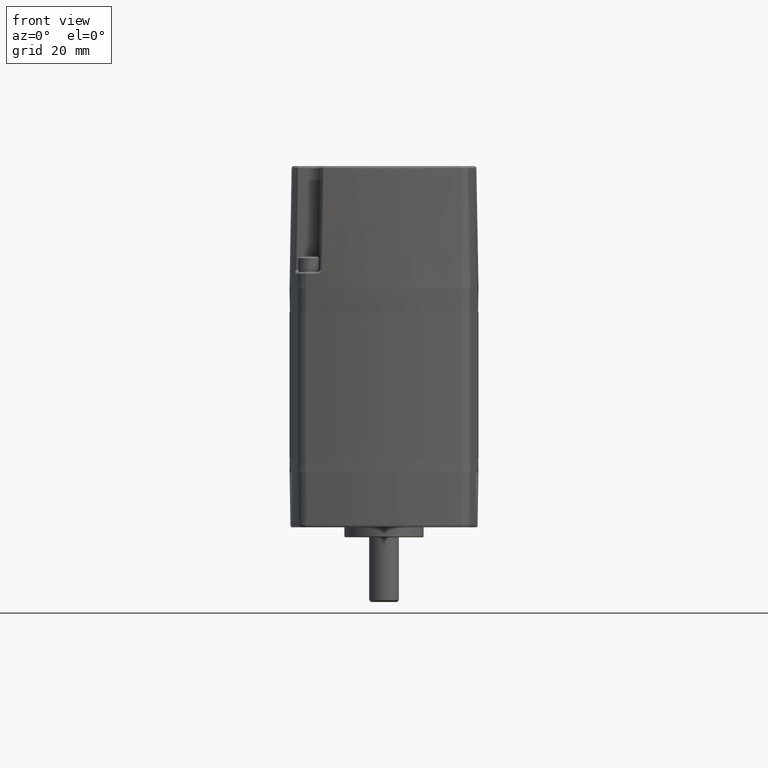
[diagram: clean part render]
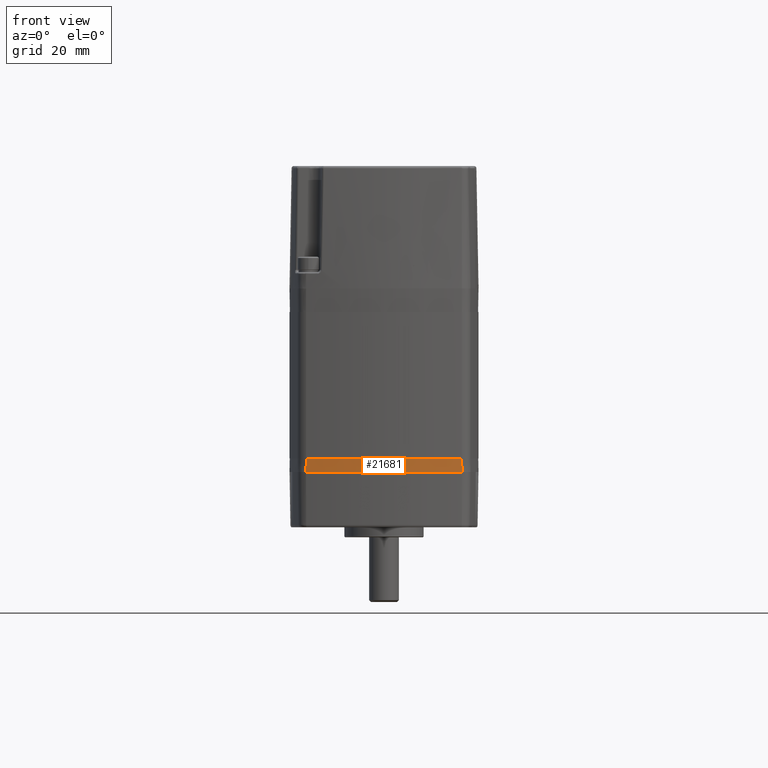
[diagram: same view with one face highlighted and labeled with its STEP entity id]
A machine part, front view. The second image highlights one B-rep face of the part: STEP entity #21681.
In plain terms, the highlighted conical surface has half-angle 1 deg.
Its self-contained STEP definition (entity closure, byte-faithful):
#385 = VERTEX_POINT ( 'NONE', #9582 ) ;
#735 = VERTEX_POINT ( 'NONE', #13779 ) ;
#1438 = CARTESIAN_POINT ( 'NONE',  ( -0.9787959327096633600, -1.087638883334293100, -0.1700000000000001000 ) ) ;
#2905 = DIRECTION ( 'NONE',  ( 1.000000000000000000, 0.0000000000000000000, 0.0000000000000000000 ) ) ;
#5779 = CIRCLE ( 'NONE', #6645, 4.846800000000000000 ) ;
#6547 = CARTESIAN_POINT ( 'NONE',  ( -1.497918734331767700E-016, 3.659299999999999600, -0.1700000000000001000 ) ) ;
#6549 = ORIENTED_EDGE ( 'NONE', *, *, #6678, .T. ) ;
#6645 = AXIS2_PLACEMENT_3D ( 'NONE', #12349, #33670, #15427 ) ;
#6678 = EDGE_CURVE ( 'NONE', #8315, #38070, #17482, .T. ) ;
#6805 = EDGE_CURVE ( 'NONE', #38070, #385, #36047, .T. ) ;
#8315 = VERTEX_POINT ( 'NONE', #31629 ) ;
#8420 = DIRECTION ( 'NONE',  ( -0.003524458289347420400, 0.01709282551887740500, 0.9998476951563912700 ) ) ;
#9582 = CARTESIAN_POINT ( 'NONE',  ( -0.9781966835319221300, -1.084732660364249100, 0.0000000000000000000 ) ) ;
#10365 = ORIENTED_EDGE ( 'NONE', *, *, #27300, .T. ) ;
#11411 = ORIENTED_EDGE ( 'NONE', *, *, #19854, .T. ) ;
#12349 = CARTESIAN_POINT ( 'NONE',  ( -1.497918734331767700E-016, 3.659299999999999600, -0.1699999999999995400 ) ) ;
#13779 = CARTESIAN_POINT ( 'NONE',  ( -0.9787959327096637000, -1.087638883334294300, -0.1700000000000001000 ) ) ;
#14621 = VECTOR ( 'NONE', #8420, 39.37007874015748100 ) ;
#15427 = DIRECTION ( 'NONE',  ( 3.552713678800500900E-015, 1.000000000000000000, 1.268188905204380700E-016 ) ) ;
#17482 = LINE ( 'NONE', #29816, #14621 ) ;
#19786 = DIRECTION ( 'NONE',  ( -0.003524458289347423000, -0.01709282551887740900, -0.9998476951563912700 ) ) ;
#19854 = EDGE_CURVE ( 'NONE', #735, #8315, #5779, .T. ) ;
#20189 = LINE ( 'NONE', #1438, #29265 ) ;
#21245 = DIRECTION ( 'NONE',  ( 0.0000000000000000000, 0.0000000000000000000, -1.000000000000000000 ) ) ;
#21681 = ADVANCED_FACE ( 'NONE', ( #31045 ), #38211, .T. ) ;
#21798 = DIRECTION ( 'NONE',  ( -0.0000000000000000000, -0.0000000000000000000, -1.000000000000000000 ) ) ;
#27300 = EDGE_CURVE ( 'NONE', #385, #735, #20189, .T. ) ;
#27366 = AXIS2_PLACEMENT_3D ( 'NONE', #39523, #21245, #2905 ) ;
#27943 = DIRECTION ( 'NONE',  ( 1.000000000000000000, 0.0000000000000000000, 0.0000000000000000000 ) ) ;
#27954 = ORIENTED_EDGE ( 'NONE', *, *, #6805, .T. ) ;
#29265 = VECTOR ( 'NONE', #19786, 39.37007874015748100 ) ;
#29816 = CARTESIAN_POINT ( 'NONE',  ( 0.9787959327096625900, -1.087638883334293600, -0.1700000000000001000 ) ) ;
#29905 = EDGE_LOOP ( 'NONE', ( #6549, #27954, #10365, #11411 ) ) ;
#31045 = FACE_OUTER_BOUND ( 'NONE', #29905, .T. ) ;
#31629 = CARTESIAN_POINT ( 'NONE',  ( 0.9787959327096627000, -1.087638883334294300, -0.1699999999999990100 ) ) ;
#33670 = DIRECTION ( 'NONE',  ( 0.0000000000000000000, -1.299949431138582200E-016, 1.000000000000000000 ) ) ;
#36047 = CIRCLE ( 'NONE', #27366, 4.843832638962204000 ) ;
#36657 = AXIS2_PLACEMENT_3D ( 'NONE', #6547, #21798, #27943 ) ;
#38070 = VERTEX_POINT ( 'NONE', #39279 ) ;
#38211 = CONICAL_SURFACE ( 'NONE', #36657, 4.846800000000000000, 0.01745329251994333400 ) ;
#39279 = CARTESIAN_POINT ( 'NONE',  ( 0.9781966835319212400, -1.084732660364249500, 0.0000000000000000000 ) ) ;
#39523 = CARTESIAN_POINT ( 'NONE',  ( -1.497918734331767700E-016, 3.659299999999999600, 0.0000000000000000000 ) ) ;